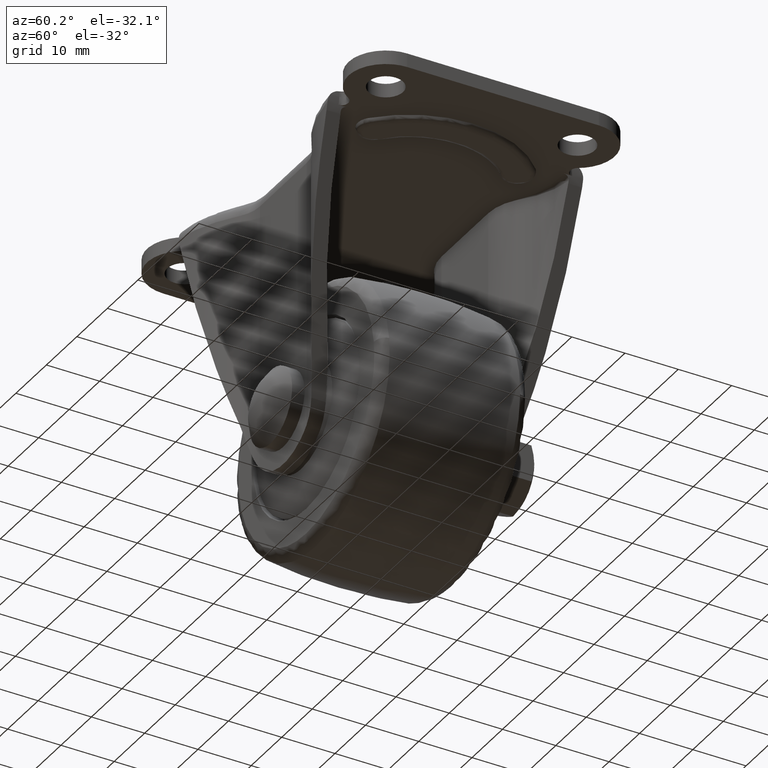
[diagram: clean part render]
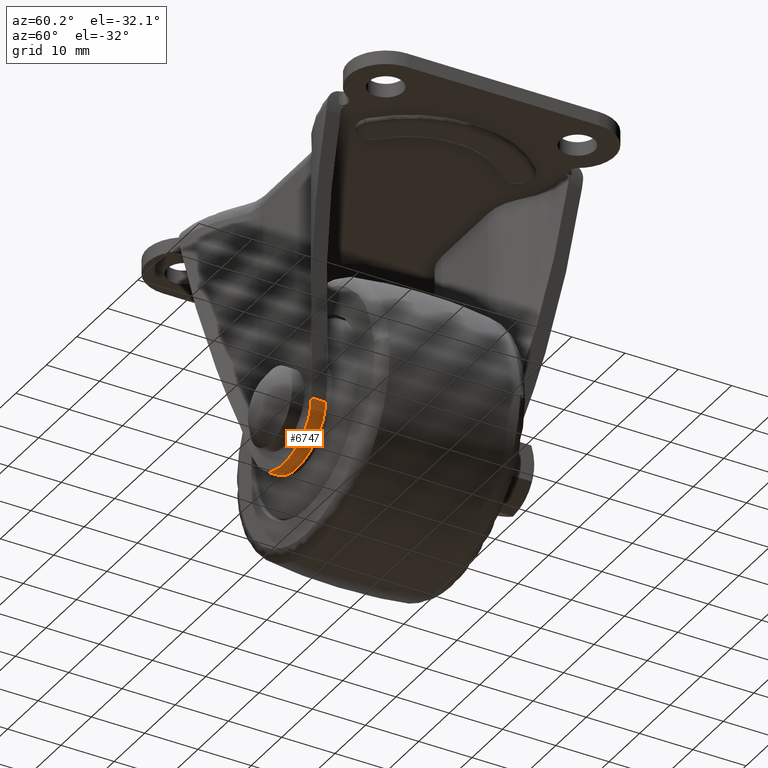
[diagram: same view with one face highlighted and labeled with its STEP entity id]
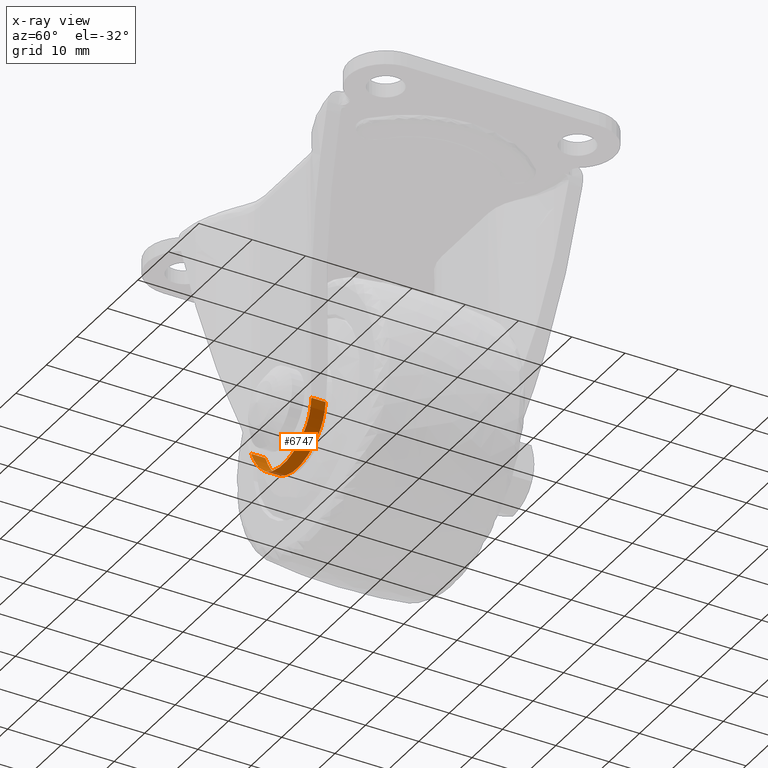
[diagram: x-ray of the same camera — body ghosted, the highlighted face saturated]
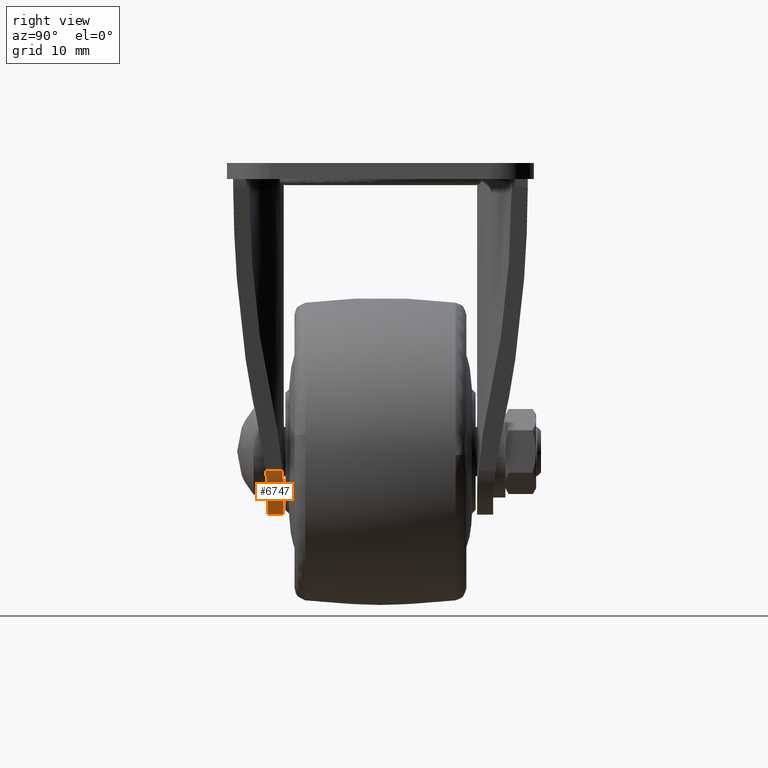
[diagram: same view with one face highlighted and labeled with its STEP entity id]
A machine part, auxiliary view. The second image highlights one B-rep face of the part: STEP entity #6747.
The next image is the same camera in x-ray: the body ghosted, the highlighted face saturated — about 0% of this face is hidden behind the body in this view.
A second angle (right view) of the same face is appended — the face is thin or edge-on in the first view.
In plain terms, the highlighted face is a freeform B-spline surface patch.
Its self-contained STEP definition (entity closure, byte-faithful):
#6603=CARTESIAN_POINT('',(9.995050263875177,-15.675424937476750,-49.687278494450773));
#6604=CARTESIAN_POINT('',(9.995050263875177,-18.809441940016331,-49.687278494450773));
#6605=CARTESIAN_POINT('',(7.914336290144745,-15.675424937476757,-57.426273277679897));
#6606=CARTESIAN_POINT('',(7.914336290144745,-18.809441940016328,-57.426273277679897));
#6607=CARTESIAN_POINT('',(-0.099122421315773,-15.675424937476750,-57.349524498913233));
#6608=CARTESIAN_POINT('',(-0.099122421315773,-18.809441940016331,-57.349524498913233));
#6609=CARTESIAN_POINT('',(-8.112581132776288,-15.675424937476757,-57.272775720146562));
#6610=CARTESIAN_POINT('',(-8.112581132776288,-18.809441940016328,-57.272775720146562));
#6611=CARTESIAN_POINT('',(-10.044686808377030,-15.675424937476750,-49.495348217839897));
#6612=CARTESIAN_POINT('',(-10.044686808377030,-18.809441940016331,-49.495348217839897));
#6620=(BOUNDED_SURFACE()B_SPLINE_SURFACE(1,2,((#6603,#6605,#6607,#6609,#6611),(#6604,#6606,#6608,#6610,#6612)),.UNSPECIFIED.,.F.,.F.,.U.)B_SPLINE_SURFACE_WITH_KNOTS((2,2),(3,2,3),(0.0,3.134017002539583),(0.0,14.154209509599729,28.308419019199452),.UNSPECIFIED.)GEOMETRIC_REPRESENTATION_ITEM()RATIONAL_B_SPLINE_SURFACE(((1.0,0.790689573743843,1.0,0.790689573743843,1.0),(1.0,0.790689573743843,1.0,0.790689573743843,1.0)))REPRESENTATION_ITEM('')SURFACE());
#6621=CARTESIAN_POINT('',(7.624870356053581,-15.750000000000000,-53.998845639966497));
#6622=VERTEX_POINT('',#6621);
#6623=CARTESIAN_POINT('',(9.891750061092079,-16.024423790196899,-50.045615801581199));
#6624=VERTEX_POINT('',#6623);
#6625=CARTESIAN_POINT('',(7.624870356053570,-15.750000000000000,-53.998845639966490));
#6626=CARTESIAN_POINT('',(7.754346146753830,-15.750000000000000,-53.857788664201927));
#6627=CARTESIAN_POINT('',(7.880111852001053,-15.752644674067840,-53.712922324099523));
#6628=CARTESIAN_POINT('',(8.124102864817624,-15.762340999463641,-53.415484554664310));
#6629=CARTESIAN_POINT('',(8.242546473483268,-15.769419249003301,-53.262574957432243));
#6630=CARTESIAN_POINT('',(8.582733237994752,-15.795676155945969,-52.797145192211431));
#6631=CARTESIAN_POINT('',(8.790547756775085,-15.819844531673921,-52.476672426798352));
#6632=CARTESIAN_POINT('',(9.169443563393195,-15.874450439226420,-51.815493389407798));
#6633=CARTESIAN_POINT('',(9.340521971521607,-15.904908088359569,-51.474787058408772));
#6634=CARTESIAN_POINT('',(9.531192328566920,-15.943150412544020,-51.035842799673652));
#6635=CARTESIAN_POINT('',(9.568163733511938,-15.950809147590260,-50.947398882944832));
#6636=CARTESIAN_POINT('',(9.639760376897931,-15.966059141489730,-50.769182318201423));
#6637=CARTESIAN_POINT('',(9.674420678877304,-15.973658687692270,-50.679306630248270));
#6638=CARTESIAN_POINT('',(9.774311374444833,-15.996105577579060,-50.409135838204882));
#6639=CARTESIAN_POINT('',(9.835618887186405,-16.010631413866911,-50.227922246616991));
#6640=CARTESIAN_POINT('',(9.891750061092090,-16.024423790196920,-50.045615801581206));
#6641=B_SPLINE_CURVE_WITH_KNOTS('',3,(#6625,#6626,#6627,#6628,#6629,#6630,#6631,#6632,#6633,#6634,#6635,#6636,#6637,#6638,#6639,#6640),.UNSPECIFIED.,.F.,.U.,(4,2,2,2,2,2,2,4),(0.0,0.125000000000000,0.250000000000000,0.500000000000001,0.750000000000001,0.812500000000000,0.874999999999998,1.0),.UNSPECIFIED.);
#6642=EDGE_CURVE('',#6622,#6624,#6641,.T.);
#6643=ORIENTED_EDGE('',*,*,#6642,.T.);
#6644=CARTESIAN_POINT('',(9.891750061092079,-18.733002500929999,-50.045615801581199));
#6645=VERTEX_POINT('',#6644);
#6646=CARTESIAN_POINT('',(9.891750061092079,-16.024423790196899,-50.045615801581199));
#6647=CARTESIAN_POINT('',(9.891750061092079,-18.733002500929999,-50.045615801581199));
#6648=QUASI_UNIFORM_CURVE('',1,(#6646,#6647),.UNSPECIFIED.,.F.,.U.);
#6649=EDGE_CURVE('',#6624,#6645,#6648,.T.);
#6650=ORIENTED_EDGE('',*,*,#6649,.T.);
#6651=CARTESIAN_POINT('',(7.624871000000000,-18.350000000000001,-53.998844938421101));
#6652=VERTEX_POINT('',#6651);
#6653=CARTESIAN_POINT('',(7.624870999999999,-18.350000000000030,-53.998844938421087));
#6654=CARTESIAN_POINT('',(7.884952785498402,-18.350000024272319,-53.715499637411092));
#6655=CARTESIAN_POINT('',(8.127698772548010,-18.364599776513192,-53.419447114299999));
#6656=CARTESIAN_POINT('',(8.579351406933567,-18.412563449834629,-52.802027151304209));
#6657=CARTESIAN_POINT('',(8.788257201732296,-18.445975562678999,-52.480661576274372));
#6658=CARTESIAN_POINT('',(9.027864706318001,-18.493965997225249,-52.062552657499609));
#6659=CARTESIAN_POINT('',(9.074639758448267,-18.503865122689689,-51.978216948615611));
#6660=CARTESIAN_POINT('',(9.165531787075445,-18.524040629178309,-51.808820861486410));
#6661=CARTESIAN_POINT('',(9.209707827270151,-18.534328692474698,-51.723658365516137));
#6662=CARTESIAN_POINT('',(9.338475564275040,-18.565588217807090,-51.466773427439911));
#6663=CARTESIAN_POINT('',(9.419310579877074,-18.586952374603200,-51.293654658229698));
#6664=CARTESIAN_POINT('',(9.647041958096223,-18.651083459186719,-50.768638014490953));
#6665=CARTESIAN_POINT('',(9.779220116632894,-18.693859959086161,-50.411097809295917));
#6666=CARTESIAN_POINT('',(9.891750061092090,-18.733002500930020,-50.045615801581206));
#6667=B_SPLINE_CURVE_WITH_KNOTS('',3,(#6653,#6654,#6655,#6656,#6657,#6658,#6659,#6660,#6661,#6662,#6663,#6664,#6665,#6666),.UNSPECIFIED.,.F.,.U.,(4,2,2,2,2,2,4),(0.0,0.250000000000003,0.500000000000006,0.562500000000003,0.625000000000001,0.750000000000001,1.0),.UNSPECIFIED.);
#6668=EDGE_CURVE('',#6652,#6645,#6667,.T.);
#6669=ORIENTED_EDGE('',*,*,#6668,.F.);
#6670=CARTESIAN_POINT('',(-7.624870356053560,-18.350000000000001,-53.998845639966497));
#6671=VERTEX_POINT('',#6670);
#6672=CARTESIAN_POINT('',(-7.624870356053561,-18.350000000000001,-53.998845639966490));
#6673=CARTESIAN_POINT('',(-4.548856025834871,-18.349999999999998,-57.349999369033291));
#6674=CARTESIAN_POINT('',(0.000000476138887,-18.350000000000001,-57.349999159768792));
#6675=CARTESIAN_POINT('',(4.548856978112647,-18.349999999999998,-57.349998950504300));
#6676=CARTESIAN_POINT('',(7.624870999999999,-18.350000000000001,-53.998844938421087));
#6684=(BOUNDED_CURVE()B_SPLINE_CURVE(2,(#6672,#6673,#6674,#6675,#6676),.UNSPECIFIED.,.F.,.U.)B_SPLINE_CURVE_WITH_KNOTS((3,2,3),(0.0,0.500000000000000,1.0),.UNSPECIFIED.)CURVE()GEOMETRIC_REPRESENTATION_ITEM()RATIONAL_B_SPLINE_CURVE((1.0,0.915482664318596,1.0,0.915482664318596,1.0))REPRESENTATION_ITEM(''));
#6685=EDGE_CURVE('',#6671,#6652,#6684,.T.);
#6686=ORIENTED_EDGE('',*,*,#6685,.F.);
#6687=CARTESIAN_POINT('',(-9.891750061092068,-18.733002500929999,-50.045615801581199));
#6688=VERTEX_POINT('',#6687);
#6689=CARTESIAN_POINT('',(-9.891750061092090,-18.733002500930020,-50.045615801581199));
#6690=CARTESIAN_POINT('',(-9.779550212522757,-18.693974780009992,-50.410025702585621));
#6691=CARTESIAN_POINT('',(-9.647115861922240,-18.651066689989079,-50.768821802656397));
#6692=CARTESIAN_POINT('',(-9.340296010928741,-18.564739157028072,-51.475458800422771));
#6693=CARTESIAN_POINT('',(-9.168467021230432,-18.522097697285840,-51.817354533146563));
#6694=CARTESIAN_POINT('',(-8.789408745612677,-18.446235571475540,-52.478502077113014));
#6695=CARTESIAN_POINT('',(-8.582095812195847,-18.412960045533659,-52.797940223141246));
#6696=CARTESIAN_POINT('',(-8.243953754124648,-18.376894099139250,-53.260687921867323));
#6697=CARTESIAN_POINT('',(-8.126698704202513,-18.367189730842441,-53.412195146989028));
#6698=CARTESIAN_POINT('',(-7.882865195859413,-18.353743946541709,-53.709688087827878));
#6699=CARTESIAN_POINT('',(-7.756203235081300,-18.350000000000009,-53.855765465410997));
#6700=CARTESIAN_POINT('',(-7.624870356053553,-18.350000000000001,-53.998845639966497));
#6701=B_SPLINE_CURVE_WITH_KNOTS('',3,(#6689,#6690,#6691,#6692,#6693,#6694,#6695,#6696,#6697,#6698,#6699,#6700),.UNSPECIFIED.,.F.,.U.,(4,2,2,2,2,4),(0.0,0.249999999999999,0.499999999999999,0.749999999999998,0.874999999999999,1.0),.UNSPECIFIED.);
#6702=EDGE_CURVE('',#6688,#6671,#6701,.T.);
#6703=ORIENTED_EDGE('',*,*,#6702,.F.);
#6704=CARTESIAN_POINT('',(-9.891750061092068,-16.024423790196899,-50.045615801581199));
#6705=VERTEX_POINT('',#6704);
#6706=CARTESIAN_POINT('',(-9.891750061092068,-16.024423790196899,-50.045615801581199));
#6707=CARTESIAN_POINT('',(-9.891750061092068,-18.733002500929999,-50.045615801581199));
#6708=QUASI_UNIFORM_CURVE('',1,(#6706,#6707),.UNSPECIFIED.,.F.,.U.);
#6709=EDGE_CURVE('',#6705,#6688,#6708,.T.);
#6710=ORIENTED_EDGE('',*,*,#6709,.F.);
#6711=CARTESIAN_POINT('',(-7.624870356053570,-15.750000000000000,-53.998845639966497));
#6712=VERTEX_POINT('',#6711);
#6713=CARTESIAN_POINT('',(-9.891750061092088,-16.024423790196920,-50.045615801581206));
#6714=CARTESIAN_POINT('',(-9.779326854813899,-15.996799511898020,-50.410751138150928));
#6715=CARTESIAN_POINT('',(-9.647069259424594,-15.966422277656690,-50.768660851420563));
#6716=CARTESIAN_POINT('',(-9.418744788854722,-15.920581987485050,-51.294915999823637));
#6717=CARTESIAN_POINT('',(-9.337634318425252,-15.905263734318959,-51.468562257604823));
#6718=CARTESIAN_POINT('',(-9.208322294348632,-15.882791556413780,-51.726365970480359));
#6719=CARTESIAN_POINT('',(-9.163943036493896,-15.875385658277240,-51.811856005115530));
#6720=CARTESIAN_POINT('',(-9.072599319265986,-15.860845638675031,-51.981942542452849));
#6721=CARTESIAN_POINT('',(-9.025634754935757,-15.853713119480810,-52.066527364369897));
#6722=CARTESIAN_POINT('',(-8.785820814381818,-15.819211978397970,-52.484568883816138));
#6723=CARTESIAN_POINT('',(-8.576915321571821,-15.795119609067580,-52.805580277869730));
#6724=CARTESIAN_POINT('',(-8.125900292216139,-15.760525734990591,-53.421680636860692));
#6725=CARTESIAN_POINT('',(-7.883789060133737,-15.750000000000000,-53.716767506526303));
#6726=CARTESIAN_POINT('',(-7.624870356053563,-15.750000000000000,-53.998845639966490));
#6727=B_SPLINE_CURVE_WITH_KNOTS('',3,(#6713,#6714,#6715,#6716,#6717,#6718,#6719,#6720,#6721,#6722,#6723,#6724,#6725,#6726),.UNSPECIFIED.,.F.,.U.,(4,2,2,2,2,2,4),(0.0,0.249999999999999,0.374999999999996,0.437499999999995,0.499999999999994,0.749999999999997,1.0),.UNSPECIFIED.);
#6728=EDGE_CURVE('',#6705,#6712,#6727,.T.);
#6729=ORIENTED_EDGE('',*,*,#6728,.T.);
#6730=CARTESIAN_POINT('',(7.624870356053568,-15.750000000000000,-53.998845639966490));
#6731=CARTESIAN_POINT('',(4.548856217918137,-15.750000000000005,-57.349999159768792));
#6732=CARTESIAN_POINT('',(2.146554E-015,-15.750000000000000,-57.349999159768799));
#6733=CARTESIAN_POINT('',(-4.548856217918130,-15.750000000000005,-57.349999159768792));
#6734=CARTESIAN_POINT('',(-7.624870356053560,-15.750000000000000,-53.998845639966497));
#6742=(BOUNDED_CURVE()B_SPLINE_CURVE(2,(#6730,#6731,#6732,#6733,#6734),.UNSPECIFIED.,.F.,.U.)B_SPLINE_CURVE_WITH_KNOTS((3,2,3),(0.0,0.500000000000000,1.0),.UNSPECIFIED.)CURVE()GEOMETRIC_REPRESENTATION_ITEM()RATIONAL_B_SPLINE_CURVE((1.0,0.915482673573572,1.0,0.915482673573572,1.0))REPRESENTATION_ITEM(''));
#6743=EDGE_CURVE('',#6622,#6712,#6742,.T.);
#6744=ORIENTED_EDGE('',*,*,#6743,.F.);
#6745=EDGE_LOOP('',(#6643,#6650,#6669,#6686,#6703,#6710,#6729,#6744));
#6746=FACE_OUTER_BOUND('',#6745,.T.);
#6747=ADVANCED_FACE('',(#6746),#6620,.T.);